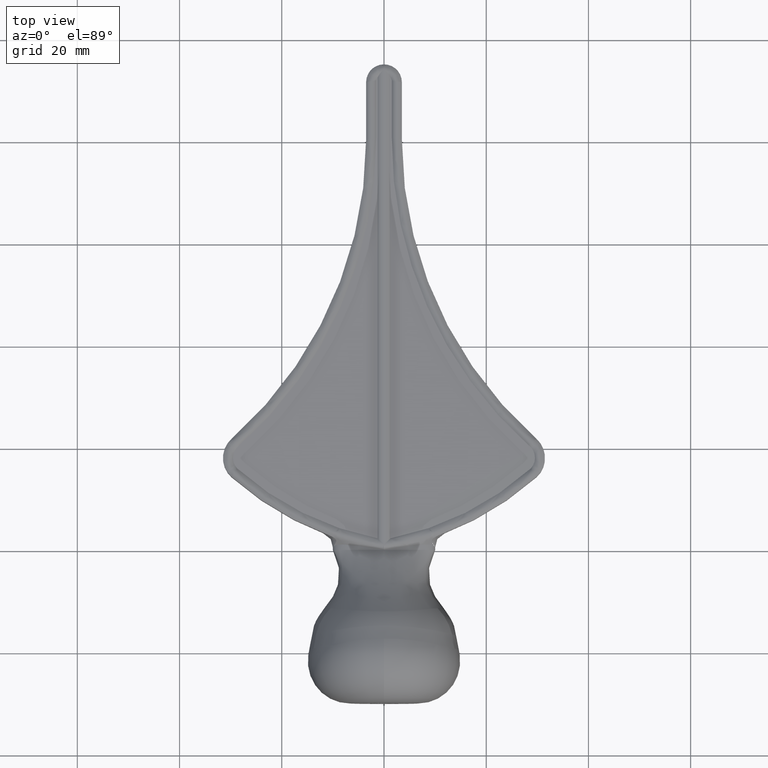
[diagram: clean part render]
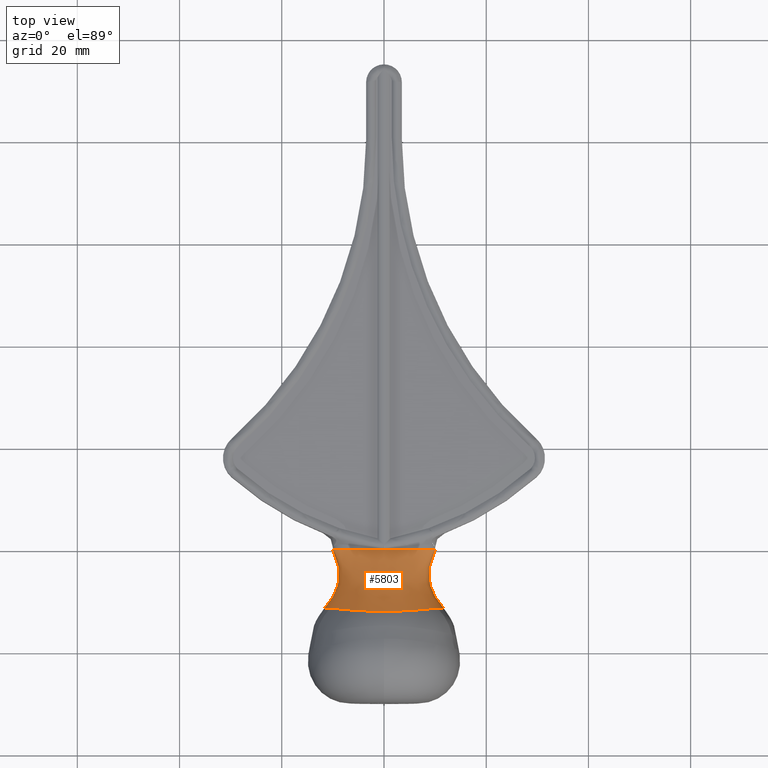
[diagram: same view with one face highlighted and labeled with its STEP entity id]
A machine part, top view. The second image highlights one B-rep face of the part: STEP entity #5803.
In plain terms, the highlighted face is a freeform B-spline surface patch.
Its self-contained STEP definition (entity closure, byte-faithful):
#76 = CARTESIAN_POINT ( 'NONE',  ( 0.9166797086305946696, 0.000000000000000000, -2.741584765018384218 ) ) ;
#115 = CARTESIAN_POINT ( 'NONE',  ( 0.02498062069277401376, -7.155931724345339973, -6.484800591760539135 ) ) ;
#158 = CARTESIAN_POINT ( 'NONE',  ( 0.3362320859718593291, -2.386255220562620405, -3.800595579857309225 ) ) ;
#194 = CARTESIAN_POINT ( 'NONE',  ( -10.48013476842515601, -11.45079667357980924, 4.618700070742887576 ) ) ;
#253 = CARTESIAN_POINT ( 'NONE',  ( 1.077156795883011497, 0.000000000000000000, -2.749999999994272137 ) ) ;
#285 = CARTESIAN_POINT ( 'NONE',  ( 11.46623115255856540, -11.36283882586796956, 1.949696441468762309 ) ) ;
#286 = CARTESIAN_POINT ( 'NONE',  ( -2.648693082304248048, -12.12635942317347038, -10.48901301363642169 ) ) ;
#298 = ORIENTED_EDGE ( 'NONE', *, *, #9612, .T. ) ;
#328 = CARTESIAN_POINT ( 'NONE',  ( 11.50946707405072189, -11.36971685179133829, -1.688360933813678910 ) ) ;
#335 = EDGE_LOOP ( 'NONE', ( #298, #8558, #7925, #8553 ) ) ;
#439 = CARTESIAN_POINT ( 'NONE',  ( -0.1816988645595144225, 0.000000000000000000, -2.750593084469084459 ) ) ;
#546 =( BOUNDED_CURVE ( )  B_SPLINE_CURVE ( 3, ( #5551, #253, #12717, #4573 ),
 .UNSPECIFIED., .F., .F. ) 
 B_SPLINE_CURVE_WITH_KNOTS ( ( 4, 4 ),
 ( 4.712388980404027095, 5.034140317544197885 ),
 .UNSPECIFIED. ) 
 CURVE ( )  GEOMETRIC_REPRESENTATION_ITEM ( )  RATIONAL_B_SPLINE_CURVE ( ( 1.000000000000000000, 0.9913915966310760108, 0.9913915966310760108, 1.000000000000000000 ) ) 
 REPRESENTATION_ITEM ( '' )  );
#596 = CARTESIAN_POINT ( 'NONE',  ( 1.772362378203864219, 0.000000000000000000, 2.750000746515952610 ) ) ;
#655 = CARTESIAN_POINT ( 'NONE',  ( -5.001582667241004643, -2.385648483429099631, 3.775776343063912410 ) ) ;
#752 = ORIENTED_EDGE ( 'NONE', *, *, #4177, .F. ) ;
#777 = CARTESIAN_POINT ( 'NONE',  ( -7.680522779043885251, 0.000000000000000000, -1.821149177777071415 ) ) ;
#814 = CARTESIAN_POINT ( 'NONE',  ( -9.316463856898291596, -11.57468564652815601, 6.395703527915453712 ) ) ;
#855 = CARTESIAN_POINT ( 'NONE',  ( 1.080269851437067885, -12.16981133828614858, 10.73164278328581567 ) ) ;
#857 = CARTESIAN_POINT ( 'NONE',  ( -5.017105385899835568, 0.000000000000000000, -2.379089249298287800 ) ) ;
#861 = CARTESIAN_POINT ( 'NONE',  ( 6.476418535813232680, 0.000000000000000000, 2.146094355756046124 ) ) ;
#968 = EDGE_CURVE ( 'NONE', #4999, #1583, #11430, .T. ) ;
#1000 = EDGE_CURVE ( 'NONE', #1986, #2846, #4846, .T. ) ;
#1042 = CARTESIAN_POINT ( 'NONE',  ( -0.3166455364342120604, -13.49999999999999822, -11.99693028913274517 ) ) ;
#1058 = VERTEX_POINT ( 'NONE', #12279 ) ;
#1094 = CARTESIAN_POINT ( 'NONE',  ( -0.1781825122258324234, -11.38641587127732535, -9.966925849604137966 ) ) ;
#1138 =( BOUNDED_CURVE ( )  B_SPLINE_CURVE ( 3, ( #11387, #12480, #6257, #8251 ),
 .UNSPECIFIED., .F., .F. ) 
 B_SPLINE_CURVE_WITH_KNOTS ( ( 4, 4 ),
 ( 5.757614577844464065, 6.292610077201671537 ),
 .UNSPECIFIED. ) 
 CURVE ( )  GEOMETRIC_REPRESENTATION_ITEM ( )  RATIONAL_B_SPLINE_CURVE ( ( 1.000000000000000000, 0.9762902048571190372, 0.9762902048571190372, 1.000000000000000000 ) ) 
 REPRESENTATION_ITEM ( '' )  );
#1142 = CARTESIAN_POINT ( 'NONE',  ( 1.976107686873728841, -7.151526922574219292, -6.291951556520429811 ) ) ;
#1145 = CARTESIAN_POINT ( 'NONE',  ( 9.267477529741421804, -11.59957391058949661, -6.492147668592923360 ) ) ;
#1191 = CARTESIAN_POINT ( 'NONE',  ( 0.09424638433143267546, 0.000000000000000000, -2.749877864549611584 ) ) ;
#1193 = CARTESIAN_POINT ( 'NONE',  ( -1.081440991977260513, -12.16974586700802163, -10.73127877773896444 ) ) ;
#1232 = CARTESIAN_POINT ( 'NONE',  ( -10.42710819315591664, -11.46450820243844326, -4.696393350357853436 ) ) ;
#1279 = CARTESIAN_POINT ( 'NONE',  ( 3.611289082050557653, -12.08431821931595707, -10.23098486326627388 ) ) ;
#1320 = CARTESIAN_POINT ( 'NONE',  ( 11.65939298573397842, -11.35417219980696579, 0.3364033831807130004 ) ) ;
#1323 = CARTESIAN_POINT ( 'NONE',  ( -0.5570192052821313355, -12.17627014847428590, -10.76616964975598378 ) ) ;
#1353 = CARTESIAN_POINT ( 'NONE',  ( -11.63462973522342381, -11.35786481808505144, 0.7679789798733217543 ) ) ;
#1495 = CARTESIAN_POINT ( 'NONE',  ( -0.7286092438696062379, 0.000000000000000000, -2.745849174124344927 ) ) ;
#1559 = B_SPLINE_CURVE_WITH_KNOTS ( 'NONE', 3,
 ( #10614, #8493, #1145, #7565, #8418, #5471, #2307, #2262, #12677, #6507, #1279, #3263, #11562, #7478, #10524, #1323, #1193, #8574, #286, #10569, #2392, #2217, #6464, #9608, #10441, #1232 ),
 .UNSPECIFIED., .F., .F.,
 ( 4, 2, 2, 2, 2, 2, 2, 2, 2, 2, 2, 2, 4 ),
 ( 0.000000000000000000, 0.003155012640472888708, 0.004732518960709333061, 0.006310025280945777415, 0.007887531601182223503, 0.009465037921418671327, 0.01104254424165511915, 0.01262005056189156697, 0.01419755688212801306, 0.01577506320236446088, 0.01893007584283735653, 0.02208508848331024871, 0.02524010112378314435 ),
 .UNSPECIFIED. ) ;
#1563 =( BOUNDED_CURVE ( )  B_SPLINE_CURVE ( 3, ( #3767, #6881, #1576, #4640 ),
 .UNSPECIFIED., .F., .F. ) 
 B_SPLINE_CURVE_WITH_KNOTS ( ( 4, 4 ),
 ( 0.000000000000000000, 1.000000000000000000 ),
 .UNSPECIFIED. ) 
 CURVE ( )  GEOMETRIC_REPRESENTATION_ITEM ( )  RATIONAL_B_SPLINE_CURVE ( ( 1.000000000000000000, 0.9762901977386737595, 0.9762901977386737595, 1.000000000000000000 ) ) 
 REPRESENTATION_ITEM ( '' )  );
#1576 = CARTESIAN_POINT ( 'NONE',  ( -9.982545140361951397, 0.000000000000000000, -0.5222490708853614327 ) ) ;
#1581 = CARTESIAN_POINT ( 'NONE',  ( -0.6207597123617097923, -2.387368234024529468, -3.798892556720069091 ) ) ;
#1583 = VERTEX_POINT ( 'NONE', #2002 ) ;
#1625 = CARTESIAN_POINT ( 'NONE',  ( -1.113190324781114127, -11.38736823402453346, -9.933491124279678175 ) ) ;
#1699 = VERTEX_POINT ( 'NONE', #9380 ) ;
#1715 = CARTESIAN_POINT ( 'NONE',  ( -8.825676521394631990, -2.525111067498002182, 2.006651497049844135 ) ) ;
#1843 = CARTESIAN_POINT ( 'NONE',  ( -3.657613415970685011, -12.07711742788042919, 10.22206684891114215 ) ) ;
#1878 = ORIENTED_EDGE ( 'NONE', *, *, #8048, .F. ) ;
#1885 = CARTESIAN_POINT ( 'NONE',  ( -1.049688008279818563, -12.16959341535863359, 10.73457151892605133 ) ) ;
#1975 = CARTESIAN_POINT ( 'NONE',  ( -5.626492393478971010, -11.94386281599613220, 9.407051876982896133 ) ) ;
#1986 = VERTEX_POINT ( 'NONE', #12012 ) ;
#2002 = CARTESIAN_POINT ( 'NONE',  ( 5.017086950953192570, 0.000000000000000000, 2.378971472441826940 ) ) ;
#2167 =( BOUNDED_CURVE ( )  B_SPLINE_CURVE ( 3, ( #2785, #5948, #3737, #8867 ),
 .UNSPECIFIED., .F., .T. ) 
 B_SPLINE_CURVE_WITH_KNOTS ( ( 4, 4 ),
 ( 0.000000000000000000, 1.000000000000000000 ),
 .UNSPECIFIED. ) 
 CURVE ( )  GEOMETRIC_REPRESENTATION_ITEM ( )  RATIONAL_B_SPLINE_CURVE ( ( 1.000000000000000000, 0.9763280840039731956, 0.9763280840039731956, 1.000000000000000000 ) ) 
 REPRESENTATION_ITEM ( '' )  );
#2171 = CARTESIAN_POINT ( 'NONE',  ( 3.059508849804861708, -13.49999999999999822, -11.72519935125433399 ) ) ;
#2172 = CARTESIAN_POINT ( 'NONE',  ( 5.179244922678051033, 0.000000000000000000, -2.352557531213324893 ) ) ;
#2209 = CARTESIAN_POINT ( 'NONE',  ( -11.51738289022080330, -11.36712990527362521, -1.656205066086979150 ) ) ;
#2215 = CARTESIAN_POINT ( 'NONE',  ( 8.721164238667496349, -2.528180618890899289, 2.107060975480202547 ) ) ;
#2217 = CARTESIAN_POINT ( 'NONE',  ( -6.971239472399418879, -11.83723695469419823, -8.619020067132096230 ) ) ;
#2262 = CARTESIAN_POINT ( 'NONE',  ( 5.563897742252417622, -11.95902785790049450, -9.429653426080896850 ) ) ;
#2307 = CARTESIAN_POINT ( 'NONE',  ( 6.478859000695101678, -11.88385858194228639, -8.903780124916858441 ) ) ;
#2344 = VERTEX_POINT ( 'NONE', #13181 ) ;
#2349 = CARTESIAN_POINT ( 'NONE',  ( 10.48465662428086098, -11.44302054887363518, 4.612638876826554934 ) ) ;
#2391 = CARTESIAN_POINT ( 'NONE',  ( 11.54047812352694358, -11.35871882139971767, 1.550550956989746432 ) ) ;
#2392 = CARTESIAN_POINT ( 'NONE',  ( -5.139934884439715468, -11.99055000683416417, -9.679396427155428029 ) ) ;
#2432 = CARTESIAN_POINT ( 'NONE',  ( 3.162302385257841131, 0.000000000000000000, -2.609067106432924277 ) ) ;
#2550 = CARTESIAN_POINT ( 'NONE',  ( -1.320297532936825835, -2.389848529908234820, -3.767669167118893547 ) ) ;
#2623 = CARTESIAN_POINT ( 'NONE',  ( 3.483894978653550467, 0.000000000000000000, 2.623387554146936029 ) ) ;
#2638 = CARTESIAN_POINT ( 'NONE',  ( -3.675009028904965280, -13.49999999999999467, -11.59460747364571809 ) ) ;
#2667 = CARTESIAN_POINT ( 'NONE',  ( -1.934107476226579886E-10, 0.000000000000000000, 2.750001139633790892 ) ) ;
#2685 = CARTESIAN_POINT ( 'NONE',  ( -2.023837300970194431, -11.38984852990822816, -9.825763789784415891 ) ) ;
#2729 = CARTESIAN_POINT ( 'NONE',  ( -0.7028872139093284011, -13.49999999999999822, -11.98944051380203568 ) ) ;
#2770 = CARTESIAN_POINT ( 'NONE',  ( -8.554443123266967319, 0.000000000000000000, -1.424649722812796115 ) ) ;
#2780 = CARTESIAN_POINT ( 'NONE',  ( -13.82165724627167869, -13.49999999999999822, 6.892696359374197002 ) ) ;
#2785 = CARTESIAN_POINT ( 'NONE',  ( -9.999555724270962287, 0.000000000000000000, -0.02591775079613865482 ) ) ;
#2846 = VERTEX_POINT ( 'NONE', #13231 ) ;
#2848 = CARTESIAN_POINT ( 'NONE',  ( -5.017105385899835568, 0.000000000000000000, -2.379089249298287800 ) ) ;
#2938 = CARTESIAN_POINT ( 'NONE',  ( 7.005475964849205539, -11.81667214355791451, 8.561517742983317802 ) ) ;
#2969 = CARTESIAN_POINT ( 'NONE',  ( -1.934107476226579886E-10, 0.000000000000000000, 2.750001139633790892 ) ) ;
#3124 = ORIENTED_EDGE ( 'NONE', *, *, #4626, .T. ) ;
#3171 = CARTESIAN_POINT ( 'NONE',  ( 8.769084372598543453, -2.518366674096674807, -1.591711643203836068 ) ) ;
#3176 = ORIENTED_EDGE ( 'NONE', *, *, #8034, .F. ) ;
#3252 = VERTEX_POINT ( 'NONE', #11888 ) ;
#3261 = ORIENTED_EDGE ( 'NONE', *, *, #12088, .F. ) ;
#3262 = CARTESIAN_POINT ( 'NONE',  ( 2.188039343342529808, -2.390788911988523946, -3.684971117481221636 ) ) ;
#3263 = CARTESIAN_POINT ( 'NONE',  ( 2.592165461903916501, -12.12946317537901209, -10.50014784861828865 ) ) ;
#3308 = ORIENTED_EDGE ( 'NONE', *, *, #3730, .F. ) ;
#3313 = CARTESIAN_POINT ( 'NONE',  ( 0.6925539639897290156, -7.155943349711681556, -6.467634048537428626 ) ) ;
#3357 = CARTESIAN_POINT ( 'NONE',  ( 11.16586495639417898, -11.38257591938101143, 3.136042375874762644 ) ) ;
#3385 = EDGE_CURVE ( 'NONE', #2344, #4161, #1138, .T. ) ;
#3430 = FACE_OUTER_BOUND ( 'NONE', #8118, .T. ) ;
#3730 = EDGE_CURVE ( 'NONE', #8803, #10358, #1563, .T. ) ;
#3733 = CARTESIAN_POINT ( 'NONE',  ( -1.531428326223125858, 0.000000000000000000, -2.720913560660816355 ) ) ;
#3737 = CARTESIAN_POINT ( 'NONE',  ( -9.556658899347327818, 0.000000000000000000, 0.9495526475764713981 ) ) ;
#3767 = CARTESIAN_POINT ( 'NONE',  ( -8.554443123266967319, 0.000000000000000000, -1.424649722812796115 ) ) ;
#3827 = CARTESIAN_POINT ( 'NONE',  ( 8.041479085936561688, -13.49999999999999822, 11.84713478251858376 ) ) ;
#3908 = CARTESIAN_POINT ( 'NONE',  ( -6.991301589765922309, -11.82223481695304201, 8.572381844968015585 ) ) ;
#3961 = CARTESIAN_POINT ( 'NONE',  ( -6.476418327447935219, 0.000000000000000000, -2.146094367833298655 ) ) ;
#3996 = CARTESIAN_POINT ( 'NONE',  ( 2.664613616147953667, -12.12442935371564978, 10.48715624813575431 ) ) ;
#4001 =( BOUNDED_CURVE ( )  B_SPLINE_CURVE ( 3, ( #5726, #12001, #9922, #2848 ),
 .UNSPECIFIED., .F., .T. ) 
 B_SPLINE_CURVE_WITH_KNOTS ( ( 4, 4 ),
 ( 0.000000000000000000, 1.000000000000000000 ),
 .UNSPECIFIED. ) 
 CURVE ( )  GEOMETRIC_REPRESENTATION_ITEM ( )  RATIONAL_B_SPLINE_CURVE ( ( 1.000000000000000000, 0.9771134385292612468, 0.9771134385292612468, 1.000000000000000000 ) ) 
 REPRESENTATION_ITEM ( '' )  );
#4042 = CARTESIAN_POINT ( 'NONE',  ( 10.48465662428086098, -11.44302054887363518, 4.612638876826554934 ) ) ;
#4087 = CARTESIAN_POINT ( 'NONE',  ( 6.566905491787133897, -11.85917038855694727, 8.858737349912527037 ) ) ;
#4101 = VERTEX_POINT ( 'NONE', #8010 ) ;
#4161 = VERTEX_POINT ( 'NONE', #10741 ) ;
#4177 = EDGE_CURVE ( 'NONE', #1058, #11586, #4001, .T. ) ;
#4186 = CARTESIAN_POINT ( 'NONE',  ( 9.465741010424773449, -13.49999999999999822, -10.26679779912043955 ) ) ;
#4230 = CARTESIAN_POINT ( 'NONE',  ( 11.29363707104602632, -11.51836667409667747, -4.625670261310689924 ) ) ;
#4270 = CARTESIAN_POINT ( 'NONE',  ( -11.43764325118363345, -11.37293206688706348, -2.052915969889435477 ) ) ;
#4319 = CARTESIAN_POINT ( 'NONE',  ( 4.317702084690060893, -7.155158763017923640, 6.509221896981697064 ) ) ;
#4356 = CARTESIAN_POINT ( 'NONE',  ( -11.45971025200991456, -11.36856249334342905, 1.972695820532119670 ) ) ;
#4358 = CARTESIAN_POINT ( 'NONE',  ( 9.999564061928952086, 0.000000000000000000, 0.02591801455896042966 ) ) ;
#4363 = CARTESIAN_POINT ( 'NONE',  ( 0.2485929327955725687, -7.156093541853887352, -6.484009866093716212 ) ) ;
#4408 = CARTESIAN_POINT ( 'NONE',  ( 11.62159461702184871, -11.36019833045557270, -0.8830450210753839624 ) ) ;
#4423 =( BOUNDED_CURVE ( )  B_SPLINE_CURVE ( 3, ( #2172, #7198, #11322, #10337 ),
 .UNSPECIFIED., .F., .F. ) 
 B_SPLINE_CURVE_WITH_KNOTS ( ( 4, 4 ),
 ( 5.256809300706289712, 5.757614577844464065 ),
 .UNSPECIFIED. ) 
 CURVE ( )  GEOMETRIC_REPRESENTATION_ITEM ( )  RATIONAL_B_SPLINE_CURVE ( ( 1.000000000000000000, 0.9792084858654753754, 0.9792084858654753754, 1.000000000000000000 ) ) 
 REPRESENTATION_ITEM ( '' )  );
#4573 = CARTESIAN_POINT ( 'NONE',  ( 3.162302385257841131, 0.000000000000000000, -2.609067106432924277 ) ) ;
#4600 = CARTESIAN_POINT ( 'NONE',  ( 0.02498062069277401376, -7.155931724345339973, -6.484800591760539135 ) ) ;
#4626 = EDGE_CURVE ( 'NONE', #4161, #1699, #5235, .T. ) ;
#4632 = ORIENTED_EDGE ( 'NONE', *, *, #12529, .T. ) ;
#4640 = CARTESIAN_POINT ( 'NONE',  ( -9.999555724270962287, 0.000000000000000000, -0.02591775079613865482 ) ) ;
#4750 = ORIENTED_EDGE ( 'NONE', *, *, #7871, .T. ) ;
#4816 = CARTESIAN_POINT ( 'NONE',  ( -10.05157186523299906, 0.000000000000000000, 1.491781113209069476 ) ) ;
#4846 = B_SPLINE_CURVE_WITH_KNOTS ( 'NONE', 3,
 ( #13182, #7060, #5025, #814, #12319, #13220, #7153, #3908, #10110, #1975, #5114, #4979, #1843, #10152, #8102, #1885, #10242, #13268, #855, #11233, #3996, #7197, #11277, #9214, #9123, #4087, #2938, #7014, #6145, #6059, #9083, #4042 ),
 .UNSPECIFIED., .F., .F.,
 ( 4, 2, 2, 2, 2, 2, 2, 2, 2, 2, 2, 2, 2, 2, 2, 4 ),
 ( 0.000000000000000000, 0.001594020384221811297, 0.003188040768443622594, 0.004782061152665433891, 0.006376081536887245188, 0.007970101921109057352, 0.009564122305330867782, 0.01115814268955267995, 0.01275216307377449038, 0.01434618345799630254, 0.01594020384221811470, 0.01753422422643992687, 0.01912824461066173556, 0.02072226499488354773, 0.02231628537910535989, 0.02550432614754898769 ),
 .UNSPECIFIED. ) ;
#4852 = ORIENTED_EDGE ( 'NONE', *, *, #3385, .T. ) ;
#4858 = CARTESIAN_POINT ( 'NONE',  ( -11.35014980664198703, -11.52511106749797776, 5.752143241930772533 ) ) ;
#4979 = CARTESIAN_POINT ( 'NONE',  ( -4.166595500159715471, -12.04762742990654267, 10.05005657155180643 ) ) ;
#4999 = VERTEX_POINT ( 'NONE', #2667 ) ;
#5025 = CARTESIAN_POINT ( 'NONE',  ( -9.944496674007265113, -11.50599123384918876, 5.541184220482322509 ) ) ;
#5111 = ORIENTED_EDGE ( 'NONE', *, *, #9826, .T. ) ;
#5114 = CARTESIAN_POINT ( 'NONE',  ( -5.150431848651768618, -11.98100182953187520, 9.642492529398996481 ) ) ;
#5235 =( BOUNDED_CURVE ( )  B_SPLINE_CURVE ( 3, ( #4358, #11555, #6457, #8530 ),
 .UNSPECIFIED., .F., .F. ) 
 B_SPLINE_CURVE_WITH_KNOTS ( ( 4, 4 ),
 ( 0.009424770022085252746, 0.5444202240986318886 ),
 .UNSPECIFIED. ) 
 CURVE ( )  GEOMETRIC_REPRESENTATION_ITEM ( )  RATIONAL_B_SPLINE_CURVE ( ( 1.000000000000000000, 0.9762902088466320905, 0.9762902088466320905, 1.000000000000000000 ) ) 
 REPRESENTATION_ITEM ( '' )  );
#5252 = CARTESIAN_POINT ( 'NONE',  ( 5.659875885980611976, -7.127999572962686159, -5.405388165761701558 ) ) ;
#5342 = CARTESIAN_POINT ( 'NONE',  ( 14.17118009503806775, -13.49999999999999822, 6.349875439772688424 ) ) ;
#5469 = CARTESIAN_POINT ( 'NONE',  ( 10.86733342926195078, -11.40516328619428421, 3.892294970092168960 ) ) ;
#5471 = CARTESIAN_POINT ( 'NONE',  ( 6.920248657210525955, -11.84367507581835532, -8.609369569846551329 ) ) ;
#5544 = CARTESIAN_POINT ( 'NONE',  ( 4.542983789613213474, 0.000000000000000000, -2.458359855142338013 ) ) ;
#5551 = CARTESIAN_POINT ( 'NONE',  ( 1.933797140295364855E-10, 0.000000000000000000, -2.750001139633790004 ) ) ;
#5619 = CARTESIAN_POINT ( 'NONE',  ( 0.09574543495126380810, -2.386415871277323131, -3.802224233215391713 ) ) ;
#5627 =( BOUNDED_CURVE ( )  B_SPLINE_CURVE ( 3, ( #10398, #13314, #861, #7115 ),
 .UNSPECIFIED., .F., .F. ) 
 B_SPLINE_CURVE_WITH_KNOTS ( ( 4, 4 ),
 ( 0.5444202240986318886, 1.045225564285748865 ),
 .UNSPECIFIED. ) 
 CURVE ( )  GEOMETRIC_REPRESENTATION_ITEM ( )  RATIONAL_B_SPLINE_CURVE ( ( 1.000000000000000000, 0.9792084806577572298, 0.9792084806577572298, 1.000000000000000000 ) ) 
 REPRESENTATION_ITEM ( '' )  );
#5726 = CARTESIAN_POINT ( 'NONE',  ( 1.933797140295364855E-10, 0.000000000000000000, -2.750001139633790004 ) ) ;
#5803 = ADVANCED_FACE ( 'NONE', ( #6492, #3430 ), #6486, .T. ) ;
#5842 = CARTESIAN_POINT ( 'NONE',  ( -6.873541084018548020, 0.000000000000000000, -2.328070292600798119 ) ) ;
#5878 = EDGE_CURVE ( 'NONE', #2846, #11942, #11324, .T. ) ;
#5892 = CARTESIAN_POINT ( 'NONE',  ( -8.086027489879873187, -7.020549096698506908, -2.879130177426552528 ) ) ;
#5948 = CARTESIAN_POINT ( 'NONE',  ( -10.01655259180012969, 0.000000000000000000, 0.4700047816422585067 ) ) ;
#5957 = CARTESIAN_POINT ( 'NONE',  ( -1.837511925623657172, 0.000000000000000000, 2.750000000000000000 ) ) ;
#6059 = CARTESIAN_POINT ( 'NONE',  ( 9.352769333222040515, -11.56414929653202250, 6.408661886492202697 ) ) ;
#6110 = CARTESIAN_POINT ( 'NONE',  ( -8.652699611505019206, 0.000000000000000000, 1.379016420057235459 ) ) ;
#6145 = CARTESIAN_POINT ( 'NONE',  ( 8.240404595999118342, -11.68743878717266504, 7.551756509426694741 ) ) ;
#6257 = CARTESIAN_POINT ( 'NONE',  ( 10.01656658560580127, 0.000000000000000000, -0.4704135045933119930 ) ) ;
#6287 = CARTESIAN_POINT ( 'NONE',  ( 0.7575790341605997957, -11.38640432973630467, -9.956346367085533444 ) ) ;
#6337 = CARTESIAN_POINT ( 'NONE',  ( 7.760091878948059296, -11.41414661638113692, -8.490136709199594733 ) ) ;
#6379 = CARTESIAN_POINT ( 'NONE',  ( 8.113558179472130760, -7.023022572946255870, -2.812654156749080148 ) ) ;
#6457 = CARTESIAN_POINT ( 'NONE',  ( 9.489085760839536476, 0.000000000000000000, 0.9996917913167768788 ) ) ;
#6464 = CARTESIAN_POINT ( 'NONE',  ( -7.803621427228738305, -11.75208905749149046, -7.976847176852115417 ) ) ;
#6486 = B_SPLINE_SURFACE_WITH_KNOTS ( 'NONE', 3, 3, ( 
 ( #7894, #12956, #4600, #5619, #12910 ),
 ( #2729, #13004, #8772, #9941, #439 ),
 ( #11890, #1625, #6759, #1581, #1495 ),
 ( #8862, #2685, #7716, #2550, #3733 ),
 ( #2638, #8816, #8907, #9854, #10926 ),
 ( #9899, #6844, #11975, #11021, #5842 ),
 ( #8958, #7934, #5892, #6887, #13099 ),
 ( #2780, #4858, #10969, #1715, #4816 ),
 ( #12021, #9982, #13054, #655, #12073 ),
 ( #3827, #10522, #4319, #11561, #12417 ),
 ( #5342, #10336, #12596, #2215, #8417 ),
 ( #11512, #4230, #6379, #3171, #11422 ),
 ( #4186, #6337, #5252, #8374, #9488 ),
 ( #2171, #10482, #1142, #3262, #9353 ),
 ( #9446, #10386, #12552, #7284, #12508 ),
 ( #12464, #6287, #3313, #8326, #76 ),
 ( #7329, #9403, #4363, #158, #7383 ),
 ( #1042, #1094, #115, #7434, #1191 ) ),
 .UNSPECIFIED., .T., .F., .F.,
 ( 4, 1, 1, 1, 1, 2, 2, 2, 1, 1, 1, 1, 4 ),
 ( 4, 1, 4 ),
 ( 0.000000000000000000, 0.01249999999999995559, 0.02499999999999991118, 0.03750000000000008882, 0.05000000000000004441, 0.2500000000000000555, 0.5000000000000001110, 0.7500000000000000000, 0.9499999999999999556, 0.9625000000000000222, 0.9749999999999999778, 0.9875000000000000444, 1.000000000000000000 ),
 ( 0.000000000000000000, 0.5300762444723355893, 1.000000000000000000 ),
 .UNSPECIFIED. ) ;
#6492 = FACE_OUTER_BOUND ( 'NONE', #335, .T. ) ;
#6496 = CARTESIAN_POINT ( 'NONE',  ( -11.65393223859565808, -11.35733722363548104, -0.4492202817689855965 ) ) ;
#6507 = CARTESIAN_POINT ( 'NONE',  ( 4.115951715292030855, -12.05659027762032487, -10.06162163722842351 ) ) ;
#6587 = CARTESIAN_POINT ( 'NONE',  ( 5.179244922678051033, 0.000000000000000000, -2.352557531213324893 ) ) ;
#6624 =( BOUNDED_CURVE ( )  B_SPLINE_CURVE ( 3, ( #12220, #10185, #8126, #8042 ),
 .UNSPECIFIED., .F., .F. ) 
 B_SPLINE_CURVE_WITH_KNOTS ( ( 4, 4 ),
 ( 0.000000000000000000, 1.000000000000000000 ),
 .UNSPECIFIED. ) 
 CURVE ( )  GEOMETRIC_REPRESENTATION_ITEM ( )  RATIONAL_B_SPLINE_CURVE ( ( 1.000000000000000000, 0.9791729484600028011, 0.9791729484600028011, 1.000000000000000000 ) ) 
 REPRESENTATION_ITEM ( '' )  );
#6729 = CARTESIAN_POINT ( 'NONE',  ( 3.162302385257841131, 0.000000000000000000, -2.609067106432924277 ) ) ;
#6759 = CARTESIAN_POINT ( 'NONE',  ( -0.6426600897791454603, -7.154972444660403497, -6.472268666803612014 ) ) ;
#6844 = CARTESIAN_POINT ( 'NONE',  ( -8.062296825303306491, -11.42234231860022220, -8.295736330188447027 ) ) ;
#6881 = CARTESIAN_POINT ( 'NONE',  ( -9.489085499318145267, 0.000000000000000000, -0.9996920385330829717 ) ) ;
#6887 = CARTESIAN_POINT ( 'NONE',  ( -8.685474546416834585, -2.520822315210992759, -1.699258334820196614 ) ) ;
#6968 = CARTESIAN_POINT ( 'NONE',  ( -1.934107476226579886E-10, 0.000000000000000000, 2.750001139633790892 ) ) ;
#6973 =( BOUNDED_CURVE ( )  B_SPLINE_CURVE ( 3, ( #12180, #12133, #5957, #2969 ),
 .UNSPECIFIED., .F., .F. ) 
 B_SPLINE_CURVE_WITH_KNOTS ( ( 4, 4 ),
 ( 0.000000000000000000, 1.000000000000000000 ),
 .UNSPECIFIED. ) 
 CURVE ( )  GEOMETRIC_REPRESENTATION_ITEM ( )  RATIONAL_B_SPLINE_CURVE ( ( 1.000000000000000000, 0.9754526791233689709, 0.9754526791233689709, 1.000000000000000000 ) ) 
 REPRESENTATION_ITEM ( '' )  );
#7014 = CARTESIAN_POINT ( 'NONE',  ( 7.841013203444047619, -11.73094419395119381, 7.909334402828926969 ) ) ;
#7060 = CARTESIAN_POINT ( 'NONE',  ( -10.22862190086672207, -11.47585436050816554, 5.091949131177143428 ) ) ;
#7115 = CARTESIAN_POINT ( 'NONE',  ( 5.017086950953192570, 0.000000000000000000, 2.378971472441826940 ) ) ;
#7153 = CARTESIAN_POINT ( 'NONE',  ( -7.829508280475794280, -11.73760249387509091, 7.919989590552050096 ) ) ;
#7197 = CARTESIAN_POINT ( 'NONE',  ( 3.689166392990279597, -12.07542658492598342, 10.21166959139515562 ) ) ;
#7198 = CARTESIAN_POINT ( 'NONE',  ( 6.622360681140695426, 0.000000000000000000, -2.112143778958298412 ) ) ;
#7284 = CARTESIAN_POINT ( 'NONE',  ( 1.509241727514675890, -2.387947415654347871, -3.748463874153695752 ) ) ;
#7329 = CARTESIAN_POINT ( 'NONE',  ( 0.06959614104090432185, -13.49999999999999822, -12.00442006446345289 ) ) ;
#7383 = CARTESIAN_POINT ( 'NONE',  ( 0.3701916332223797457, 0.000000000000000000, -2.749162644630138708 ) ) ;
#7434 = CARTESIAN_POINT ( 'NONE',  ( 0.09574543495126380810, -2.386415871277323131, -3.802224233215391713 ) ) ;
#7478 = CARTESIAN_POINT ( 'NONE',  ( 1.028291102943713398, -12.17064688106519021, -10.73541808794509045 ) ) ;
#7557 = CARTESIAN_POINT ( 'NONE',  ( -11.65830445378214364, -11.35666013781006711, 0.3638750179922647932 ) ) ;
#7563 = CARTESIAN_POINT ( 'NONE',  ( 11.63708811696562151, -11.35437242364115207, 0.7448548605702652869 ) ) ;
#7565 = CARTESIAN_POINT ( 'NONE',  ( 8.150110861064968404, -11.72083149852955586, -7.620162010974845579 ) ) ;
#7694 = EDGE_CURVE ( 'NONE', #8407, #2344, #4423, .T. ) ;
#7716 = CARTESIAN_POINT ( 'NONE',  ( -1.293179062788543554, -7.152474134577573750, -6.409457867046488566 ) ) ;
#7774 = EDGE_CURVE ( 'NONE', #11942, #4101, #1559, .T. ) ;
#7811 = VERTEX_POINT ( 'NONE', #6729 ) ;
#7871 = EDGE_CURVE ( 'NONE', #7811, #8407, #10444, .T. ) ;
#7894 = CARTESIAN_POINT ( 'NONE',  ( -0.3166455364342120604, -13.49999999999999822, -11.99693028913274517 ) ) ;
#7925 = ORIENTED_EDGE ( 'NONE', *, *, #5878, .T. ) ;
#7926 = CARTESIAN_POINT ( 'NONE',  ( -5.017105385899835568, 0.000000000000000000, -2.379089249298287800 ) ) ;
#7934 = CARTESIAN_POINT ( 'NONE',  ( -11.46213127769741646, -11.52082231521100120, -4.338857872134654237 ) ) ;
#8010 = CARTESIAN_POINT ( 'NONE',  ( -10.42710819315591664, -11.46450820243844326, -4.696393350357853436 ) ) ;
#8034 = EDGE_CURVE ( 'NONE', #9976, #3252, #6624, .T. ) ;
#8042 = CARTESIAN_POINT ( 'NONE',  ( -5.179266488913739863, 0.000000000000000000, 2.352689040821677402 ) ) ;
#8048 = EDGE_CURVE ( 'NONE', #3252, #4999, #6973, .T. ) ;
#8102 = CARTESIAN_POINT ( 'NONE',  ( -2.108050207790173936, -12.14397631067164873, 10.59779642559860235 ) ) ;
#8118 = EDGE_LOOP ( 'NONE', ( #4750, #8345, #4852, #3124, #5111, #9067, #1878, #3176, #8976, #3308, #3261, #752, #4632 ) ) ;
#8126 = CARTESIAN_POINT ( 'NONE',  ( -6.623626634279251135, 0.000000000000000000, 2.111932977481099538 ) ) ;
#8251 = CARTESIAN_POINT ( 'NONE',  ( 9.999564061928952086, 0.000000000000000000, 0.02591801455896042966 ) ) ;
#8326 = CARTESIAN_POINT ( 'NONE',  ( 0.8117776529163809318, -2.386404329736313557, -3.789147546982454706 ) ) ;
#8345 = ORIENTED_EDGE ( 'NONE', *, *, #7694, .T. ) ;
#8374 = CARTESIAN_POINT ( 'NONE',  ( 6.136978804956643607, -2.414146616381146249, -3.176665760901227209 ) ) ;
#8407 = VERTEX_POINT ( 'NONE', #9783 ) ;
#8417 = CARTESIAN_POINT ( 'NONE',  ( 9.947539876945999282, 0.000000000000000000, 1.543616624591358066 ) ) ;
#8418 = CARTESIAN_POINT ( 'NONE',  ( 7.754558799055770280, -11.76227548174544424, -7.968317613247622333 ) ) ;
#8486 = CARTESIAN_POINT ( 'NONE',  ( -10.86175155918996538, -11.41277701215089735, 3.900646201656375656 ) ) ;
#8493 = CARTESIAN_POINT ( 'NONE',  ( 9.899174600815104696, -11.52603913666183644, -5.654541993185704385 ) ) ;
#8530 = CARTESIAN_POINT ( 'NONE',  ( 8.554359782911603816, 0.000000000000000000, 1.424468073321563555 ) ) ;
#8553 = ORIENTED_EDGE ( 'NONE', *, *, #7774, .T. ) ;
#8558 = ORIENTED_EDGE ( 'NONE', *, *, #1000, .T. ) ;
#8574 = CARTESIAN_POINT ( 'NONE',  ( -2.125719211754699245, -12.14486708989512032, -10.59323777419096935 ) ) ;
#8613 = CARTESIAN_POINT ( 'NONE',  ( 11.10739351326692592, -11.40302391582338792, -3.262320221341070692 ) ) ;
#8656 = CARTESIAN_POINT ( 'NONE',  ( 11.42668298473863686, -11.37633773010892746, -2.090029078984657396 ) ) ;
#8743 = CARTESIAN_POINT ( 'NONE',  ( 3.867884652360520370, 0.000000000000000000, -2.544198259923464267 ) ) ;
#8772 = CARTESIAN_POINT ( 'NONE',  ( -0.1986316914100245412, -7.155769906836791705, -6.485591317427361169 ) ) ;
#8803 = VERTEX_POINT ( 'NONE', #10900 ) ;
#8816 = CARTESIAN_POINT ( 'NONE',  ( -2.909716121388816745, -11.39358392582501267, -9.657280113069388605 ) ) ;
#8836 = B_SPLINE_CURVE_WITH_KNOTS ( 'NONE', 3,
 ( #10430, #11364, #12409, #4270, #2209, #9482, #6496, #7557, #1353, #11685, #4356, #12546, #8486, #194 ),
 .UNSPECIFIED., .F., .F.,
 ( 4, 2, 2, 2, 2, 2, 4 ),
 ( 0.000000000000000000, 0.002427393168214614892, 0.003641089752321922772, 0.004854786336429231519, 0.006068482920536539399, 0.007282179504643849013, 0.009709572672858466508 ),
 .UNSPECIFIED. ) ;
#8862 = CARTESIAN_POINT ( 'NONE',  ( -2.586697459004080102, -13.49999999999999645, -11.80810395961434978 ) ) ;
#8867 = CARTESIAN_POINT ( 'NONE',  ( -8.652699611505019206, 0.000000000000000000, 1.379016420057235459 ) ) ;
#8907 = CARTESIAN_POINT ( 'NONE',  ( -1.927014878001109155, -7.148711608766197045, -6.305655503168353881 ) ) ;
#8958 = CARTESIAN_POINT ( 'NONE',  ( -14.13622781016142937, -13.49999999999999822, -5.025618259857992598 ) ) ;
#8976 = ORIENTED_EDGE ( 'NONE', *, *, #12689, .F. ) ;
#9067 = ORIENTED_EDGE ( 'NONE', *, *, #968, .F. ) ;
#9083 = CARTESIAN_POINT ( 'NONE',  ( 9.981600699777454011, -11.49278661786036260, 5.559582264159720566 ) ) ;
#9123 = CARTESIAN_POINT ( 'NONE',  ( 5.647762902678345576, -11.93998655167506229, 9.395346504093996742 ) ) ;
#9214 = CARTESIAN_POINT ( 'NONE',  ( 5.167577373988089917, -11.97819552312421898, 9.633828715494699324 ) ) ;
#9353 = CARTESIAN_POINT ( 'NONE',  ( 2.497292277424634221, 0.000000000000000000, -2.666390912543685321 ) ) ;
#9380 = CARTESIAN_POINT ( 'NONE',  ( 8.554359782911603816, 0.000000000000000000, 1.424468073321563555 ) ) ;
#9403 = CARTESIAN_POINT ( 'NONE',  ( 0.1360344616450358257, -11.38625522056261730, -9.970782024327496273 ) ) ;
#9446 = CARTESIAN_POINT ( 'NONE',  ( 1.961046502098885203, -13.49999999999999822, -11.89629118154469722 ) ) ;
#9482 = CARTESIAN_POINT ( 'NONE',  ( -11.62552961180174371, -11.35932867808958591, -0.8550710550240562258 ) ) ;
#9488 = CARTESIAN_POINT ( 'NONE',  ( 7.031885443312523520, 0.000000000000000000, -2.292028947148796014 ) ) ;
#9552 = CARTESIAN_POINT ( 'NONE',  ( 10.40876412835576126, -11.47167597092667712, -4.723678178982596343 ) ) ;
#9607 = CARTESIAN_POINT ( 'NONE',  ( 11.65155274998775248, -11.35723025955349108, -0.4780885814403398326 ) ) ;
#9608 = CARTESIAN_POINT ( 'NONE',  ( -9.289923429801271837, -11.59044644815337044, -6.468699350209434762 ) ) ;
#9612 = EDGE_CURVE ( 'NONE', #4101, #1986, #8836, .T. ) ;
#9768 =( BOUNDED_CURVE ( )  B_SPLINE_CURVE ( 3, ( #7926, #3961, #777, #2770 ),
 .UNSPECIFIED., .F., .T. ) 
 B_SPLINE_CURVE_WITH_KNOTS ( ( 4, 4 ),
 ( 0.000000000000000000, 1.000000000000000000 ),
 .UNSPECIFIED. ) 
 CURVE ( )  GEOMETRIC_REPRESENTATION_ITEM ( )  RATIONAL_B_SPLINE_CURVE ( ( 1.000000000000000000, 0.9792084949852031261, 0.9792084949852031261, 1.000000000000000000 ) ) 
 REPRESENTATION_ITEM ( '' )  );
#9783 = CARTESIAN_POINT ( 'NONE',  ( 5.179244922678051033, 0.000000000000000000, -2.352557531213324893 ) ) ;
#9826 = EDGE_CURVE ( 'NONE', #1699, #1583, #5627, .T. ) ;
#9854 = CARTESIAN_POINT ( 'NONE',  ( -2.002454851576420225, -2.393583925825024217, -3.713335812997767604 ) ) ;
#9899 = CARTESIAN_POINT ( 'NONE',  ( -9.997740566117553129, -13.49999999999999645, -9.889373215852682364 ) ) ;
#9922 = CARTESIAN_POINT ( 'NONE',  ( -3.483899551407425577, 0.000000000000000000, -2.623386824814867069 ) ) ;
#9941 = CARTESIAN_POINT ( 'NONE',  ( -0.1447412160693317407, -2.386576521992025857, -3.803852886573474201 ) ) ;
#9976 = VERTEX_POINT ( 'NONE', #6110 ) ;
#9982 = CARTESIAN_POINT ( 'NONE',  ( -6.276171044848634750, -11.38564848342908320, 10.05567270558164950 ) ) ;
#10016 = CARTESIAN_POINT ( 'NONE',  ( 5.017086950953192570, 0.000000000000000000, 2.378971472441826940 ) ) ;
#10110 = CARTESIAN_POINT ( 'NONE',  ( -6.546843794968724595, -11.86451285281483692, 8.872342255395778921 ) ) ;
#10152 = CARTESIAN_POINT ( 'NONE',  ( -2.629627150032238792, -12.12518529746503049, 10.49531045297871223 ) ) ;
#10185 = CARTESIAN_POINT ( 'NONE',  ( -7.806022838240019190, 0.000000000000000000, 1.780443826012868547 ) ) ;
#10242 = CARTESIAN_POINT ( 'NONE',  ( -0.5132521231440799747, -12.17632237535276118, 10.76828839501414059 ) ) ;
#10336 = CARTESIAN_POINT ( 'NONE',  ( 11.56076756495622782, -11.52818061889089840, 5.453516924875922101 ) ) ;
#10337 = CARTESIAN_POINT ( 'NONE',  ( 8.650459772342189879, 0.000000000000000000, -1.379867315743848355 ) ) ;
#10358 = VERTEX_POINT ( 'NONE', #13257 ) ;
#10386 = CARTESIAN_POINT ( 'NONE',  ( 1.671537698615712442, -11.38794741565435586, -9.870968362290197362 ) ) ;
#10398 = CARTESIAN_POINT ( 'NONE',  ( 8.554359782911603816, 0.000000000000000000, 1.424468073321563555 ) ) ;
#10430 = CARTESIAN_POINT ( 'NONE',  ( -10.42710819315591664, -11.46450820243844326, -4.696393350357853436 ) ) ;
#10441 = CARTESIAN_POINT ( 'NONE',  ( -9.920131853158828505, -11.51767317707163407, -5.628806652389032550 ) ) ;
#10444 =( BOUNDED_CURVE ( )  B_SPLINE_CURVE ( 3, ( #2432, #8743, #5544, #6587 ),
 .UNSPECIFIED., .F., .F. ) 
 B_SPLINE_CURVE_WITH_KNOTS ( ( 4, 4 ),
 ( 5.034140317544197885, 5.256809300706289712 ),
 .UNSPECIFIED. ) 
 CURVE ( )  GEOMETRIC_REPRESENTATION_ITEM ( )  RATIONAL_B_SPLINE_CURVE ( ( 1.000000000000000000, 0.9958724764865780621, 0.9958724764865780621, 1.000000000000000000 ) ) 
 REPRESENTATION_ITEM ( '' )  );
#10482 = CARTESIAN_POINT ( 'NONE',  ( 2.562825533784038878, -11.39078891198852617, -9.724287438722706511 ) ) ;
#10522 = CARTESIAN_POINT ( 'NONE',  ( 6.632536069300296155, -11.38718325912553730, 9.878178993626647753 ) ) ;
#10524 = CARTESIAN_POINT ( 'NONE',  ( 0.4963418872936398163, -12.17671626833326926, -10.76856829970781071 ) ) ;
#10569 = CARTESIAN_POINT ( 'NONE',  ( -4.173433507611391313, -12.05633997813909808, -10.07929650245583275 ) ) ;
#10614 = CARTESIAN_POINT ( 'NONE',  ( 10.40876412835576126, -11.47167597092667712, -4.723678178982596343 ) ) ;
#10648 = CARTESIAN_POINT ( 'NONE',  ( 10.80014079469557586, -11.42992378916619955, -4.008753015238649020 ) ) ;
#10741 = CARTESIAN_POINT ( 'NONE',  ( 9.999564061928952086, 0.000000000000000000, 0.02591801455896042966 ) ) ;
#10900 = CARTESIAN_POINT ( 'NONE',  ( -8.554443123266967319, 0.000000000000000000, -1.424649722812796115 ) ) ;
#10926 = CARTESIAN_POINT ( 'NONE',  ( -2.314094790768805865, 0.000000000000000000, -2.678861501855506866 ) ) ;
#10969 = CARTESIAN_POINT ( 'NONE',  ( -8.056590206968875734, -7.016229195531966667, 3.519496171891754344 ) ) ;
#11021 = CARTESIAN_POINT ( 'NONE',  ( -5.979227468240806864, -2.422342318600181788, -3.257969768999055216 ) ) ;
#11233 = CARTESIAN_POINT ( 'NONE',  ( 2.137172688102094487, -12.14384270112613606, 10.59231537807874446 ) ) ;
#11277 = CARTESIAN_POINT ( 'NONE',  ( 4.189757351225719795, -12.04577098493026455, 10.04106802108273477 ) ) ;
#11322 = CARTESIAN_POINT ( 'NONE',  ( 7.803979799147657381, 0.000000000000000000, -1.781014974555734431 ) ) ;
#11324 = B_SPLINE_CURVE_WITH_KNOTS ( 'NONE', 3,
 ( #2349, #5469, #3357, #285, #2391, #7563, #1320, #9607, #4408, #328, #8656, #8613, #10648, #11610 ),
 .UNSPECIFIED., .F., .F.,
 ( 4, 2, 2, 2, 2, 2, 4 ),
 ( 0.000000000000000000, 0.002434013136804695238, 0.003651019705207043074, 0.004868026273609390477, 0.006085032842011737879, 0.007302039410414086149, 0.009736052547218779218 ),
 .UNSPECIFIED. ) ;
#11364 = CARTESIAN_POINT ( 'NONE',  ( -10.81554100197791257, -11.42377450581693488, -3.982001199645174516 ) ) ;
#11387 = CARTESIAN_POINT ( 'NONE',  ( 8.650459772342189879, 0.000000000000000000, -1.379867315743848355 ) ) ;
#11422 = CARTESIAN_POINT ( 'NONE',  ( 10.04116866640429784, 0.000000000000000000, -1.188241339429024102 ) ) ;
#11430 =( BOUNDED_CURVE ( )  B_SPLINE_CURVE ( 3, ( #6968, #596, #2623, #10016 ),
 .UNSPECIFIED., .F., .F. ) 
 B_SPLINE_CURVE_WITH_KNOTS ( ( 4, 4 ),
 ( 0.000000000000000000, 1.000000000000000000 ),
 .UNSPECIFIED. ) 
 CURVE ( )  GEOMETRIC_REPRESENTATION_ITEM ( )  RATIONAL_B_SPLINE_CURVE ( ( 1.000000000000000000, 0.9771133059051713143, 0.9771133059051713143, 1.000000000000000000 ) ) 
 REPRESENTATION_ITEM ( '' )  );
#11512 = CARTESIAN_POINT ( 'NONE',  ( 13.85660953114832594, -13.49999999999999822, -5.568439179459502064 ) ) ;
#11555 = CARTESIAN_POINT ( 'NONE',  ( 9.982545159544327973, 0.000000000000000000, 0.5222489292851355547 ) ) ;
#11561 = CARTESIAN_POINT ( 'NONE',  ( 4.810091797338469810, -2.387183259125547963, 3.828672123366873681 ) ) ;
#11562 = CARTESIAN_POINT ( 'NONE',  ( 2.075566100174174977, -12.14697450340398177, -10.60099400586199714 ) ) ;
#11586 = VERTEX_POINT ( 'NONE', #857 ) ;
#11610 = CARTESIAN_POINT ( 'NONE',  ( 10.40876412835576126, -11.47167597092667712, -4.723678178982596343 ) ) ;
#11685 = CARTESIAN_POINT ( 'NONE',  ( -11.53566736926152991, -11.36377720229470611, 1.571307414672563629 ) ) ;
#11888 = CARTESIAN_POINT ( 'NONE',  ( -5.179266488913739863, 0.000000000000000000, 2.352689040821677402 ) ) ;
#11890 = CARTESIAN_POINT ( 'NONE',  ( -1.467394906157556855, -13.49999999999999467, -11.94772364395996256 ) ) ;
#11942 = VERTEX_POINT ( 'NONE', #9552 ) ;
#11975 = CARTESIAN_POINT ( 'NONE',  ( -5.614892492161669857, -7.119744345985812295, -5.445702525993677767 ) ) ;
#12001 = CARTESIAN_POINT ( 'NONE',  ( -1.772372408256668086, 0.000000000000000000, -2.749999999999999556 ) ) ;
#12012 = CARTESIAN_POINT ( 'NONE',  ( -10.48013476842515601, -11.45079667357980924, 4.618700070742887576 ) ) ;
#12021 = CARTESIAN_POINT ( 'NONE',  ( -7.408188013068135014, -13.49999999999999822, 12.14672579574691369 ) ) ;
#12073 = CARTESIAN_POINT ( 'NONE',  ( -5.613151362150392565, 0.000000000000000000, 2.735573466160150069 ) ) ;
#12088 = EDGE_CURVE ( 'NONE', #11586, #8803, #9768, .T. ) ;
#12133 = CARTESIAN_POINT ( 'NONE',  ( -3.607364858967932797, 0.000000000000000000, 2.614140349974320543 ) ) ;
#12180 = CARTESIAN_POINT ( 'NONE',  ( -5.179266488913739863, 0.000000000000000000, 2.352689040821677402 ) ) ;
#12220 = CARTESIAN_POINT ( 'NONE',  ( -8.652699611505019206, 0.000000000000000000, 1.379016420057235459 ) ) ;
#12279 = CARTESIAN_POINT ( 'NONE',  ( 1.933797140295364855E-10, 0.000000000000000000, -2.750001139633790004 ) ) ;
#12319 = CARTESIAN_POINT ( 'NONE',  ( -8.971523357657170905, -11.61330573879598482, 6.801946158926295283 ) ) ;
#12409 = CARTESIAN_POINT ( 'NONE',  ( -11.12206548121269023, -11.39774845771841605, -3.231556901063119991 ) ) ;
#12417 = CARTESIAN_POINT ( 'NONE',  ( 5.424658593487520442, 0.000000000000000000, 2.764182262939074430 ) ) ;
#12464 = CARTESIAN_POINT ( 'NONE',  ( 0.8355226744096466707, -13.49999999999999822, -11.99238049040993559 ) ) ;
#12480 = CARTESIAN_POINT ( 'NONE',  ( 9.555918570733386019, 0.000000000000000000, -0.9503293451897018018 ) ) ;
#12508 = CARTESIAN_POINT ( 'NONE',  ( 1.717647090605003202, 0.000000000000000000, -2.712492312361287183 ) ) ;
#12529 = EDGE_CURVE ( 'NONE', #1058, #7811, #546, .T. ) ;
#12546 = CARTESIAN_POINT ( 'NONE',  ( -11.15833251117902947, -11.38976753222247673, 3.150785890642692433 ) ) ;
#12552 = CARTESIAN_POINT ( 'NONE',  ( 1.342774593990357701, -7.154389056478746234, -6.400252295393497270 ) ) ;
#12596 = CARTESIAN_POINT ( 'NONE',  ( 8.022176844978556431, -7.013137350222274691, 3.595234245827785280 ) ) ;
#12677 = CARTESIAN_POINT ( 'NONE',  ( 5.091273214040730188, -11.99398568743520599, -9.661069261885527837 ) ) ;
#12689 = EDGE_CURVE ( 'NONE', #10358, #9976, #2167, .T. ) ;
#12717 = CARTESIAN_POINT ( 'NONE',  ( 2.140404691286003303, 0.000000000000000000, -2.702551002863147644 ) ) ;
#12910 = CARTESIAN_POINT ( 'NONE',  ( 0.09424638433143267546, 0.000000000000000000, -2.749877864549611584 ) ) ;
#12956 = CARTESIAN_POINT ( 'NONE',  ( -0.1781825122258324234, -11.38641587127732535, -9.966925849604137966 ) ) ;
#13004 = CARTESIAN_POINT ( 'NONE',  ( -0.4923994860967007003, -11.38657652199203163, -9.963069674880779658 ) ) ;
#13054 = CARTESIAN_POINT ( 'NONE',  ( -4.367663326075605035, -7.156704685672766963, 6.460379286539366994 ) ) ;
#13099 = CARTESIAN_POINT ( 'NONE',  ( -9.957943075774704056, 0.000000000000000000, -1.240076850811314468 ) ) ;
#13181 = CARTESIAN_POINT ( 'NONE',  ( 8.650459772342189879, 0.000000000000000000, -1.379867315743848355 ) ) ;
#13182 = CARTESIAN_POINT ( 'NONE',  ( -10.48013476842515601, -11.45079667357980924, 4.618700070742887576 ) ) ;
#13220 = CARTESIAN_POINT ( 'NONE',  ( -8.225788015107653450, -11.69504045546287685, 7.566282418385741337 ) ) ;
#13231 = CARTESIAN_POINT ( 'NONE',  ( 10.48465662428086098, -11.44302054887363518, 4.612638876826554934 ) ) ;
#13257 = CARTESIAN_POINT ( 'NONE',  ( -9.999555724270962287, 0.000000000000000000, -0.02591775079613865482 ) ) ;
#13268 = CARTESIAN_POINT ( 'NONE',  ( 0.5501720135485889118, -12.17645626055528219, 10.76652945396760863 ) ) ;
#13314 = CARTESIAN_POINT ( 'NONE',  ( 7.680523357459338563, 0.000000000000000000, 1.821149035102029412 ) ) ;